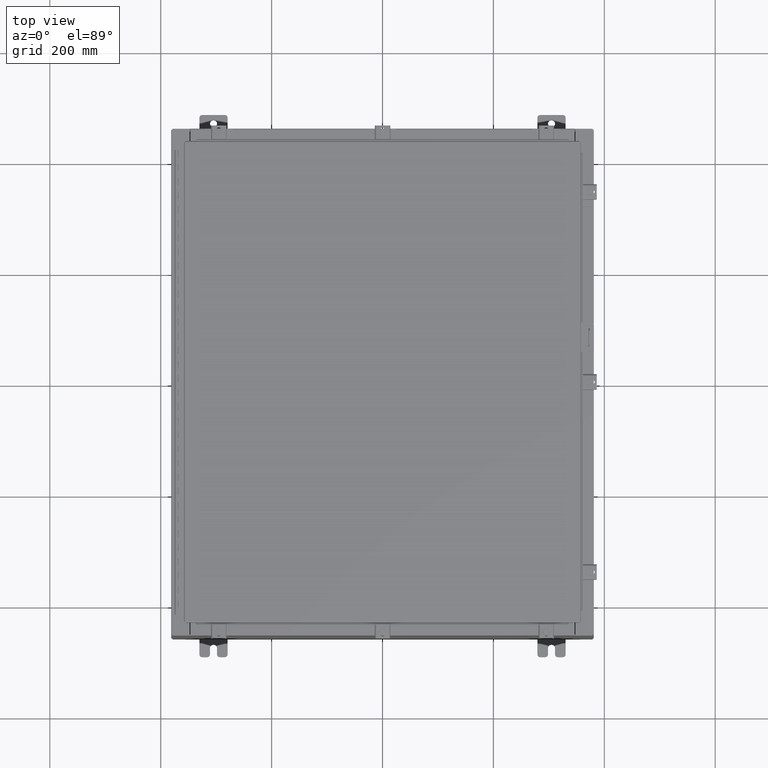
[diagram: clean part render]
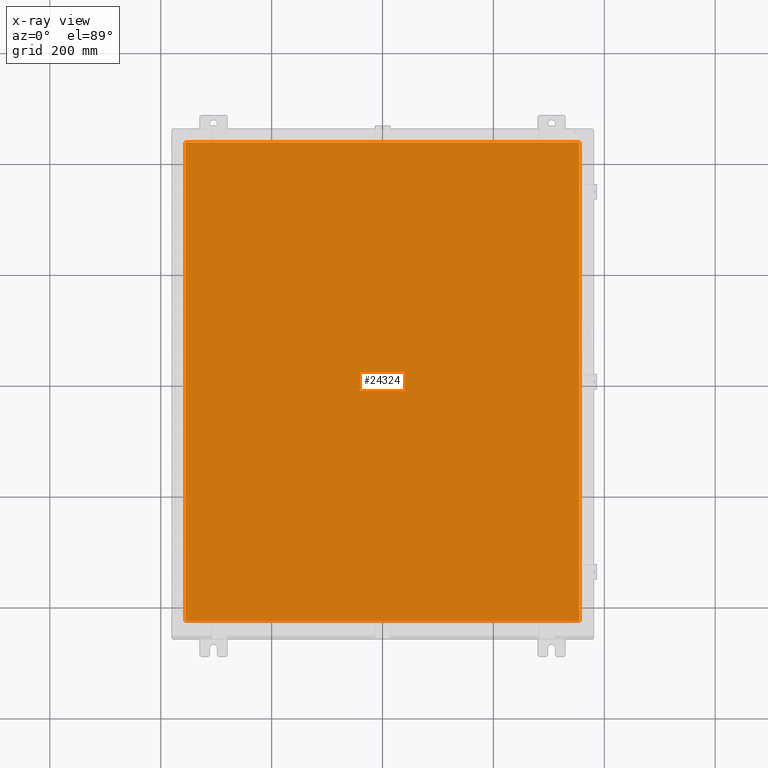
[diagram: x-ray — body ghosted, one internal face saturated and labeled with its STEP entity id]
A machine part, top view, then the same camera in x-ray: the body is ghosted and one INTERNAL B-rep face — a face not visible from any outside direction — is saturated and labeled: STEP entity #24324.
In plain terms, the highlighted planar face has unit normal (0, 0, -1).
Its self-contained STEP definition (entity closure, byte-faithful):
#29 = DIRECTION ( 'NONE',  ( -1.000000000000000000, -0.0000000000000000000, -0.0000000000000000000 ) ) ;
#142 = DIRECTION ( 'NONE',  ( -1.000000000000000000, 0.0000000000000000000, -0.0000000000000000000 ) ) ;
#771 = EDGE_CURVE ( 'NONE', #7264, #1986, #32343, .T. ) ;
#1769 = CARTESIAN_POINT ( 'NONE',  ( -13.99030000000000700, 17.00630000000000300, -0.07470000000000000300 ) ) ;
#1986 = VERTEX_POINT ( 'NONE', #1769 ) ;
#4353 = VECTOR ( 'NONE', #37739, 39.37007874015748100 ) ;
#5271 = DIRECTION ( 'NONE',  ( 1.000000000000000000, -0.0000000000000000000, -0.0000000000000000000 ) ) ;
#5656 = PLANE ( 'NONE',  #19933 ) ;
#6563 = LINE ( 'NONE', #34400, #4353 ) ;
#7264 = VERTEX_POINT ( 'NONE', #16754 ) ;
#8417 = EDGE_CURVE ( 'NONE', #21798, #7264, #41114, .T. ) ;
#8924 = ORIENTED_EDGE ( 'NONE', *, *, #36161, .F. ) ;
#9927 = EDGE_LOOP ( 'NONE', ( #15085, #33558, #8924, #13648 ) ) ;
#12647 = DIRECTION ( 'NONE',  ( 0.0000000000000000000, 1.000000000000000000, 0.0000000000000000000 ) ) ;
#12850 = CARTESIAN_POINT ( 'NONE',  ( 13.99029999999999200, -17.00630000000000000, -0.07470000000000019700 ) ) ;
#13648 = ORIENTED_EDGE ( 'NONE', *, *, #771, .F. ) ;
#15085 = ORIENTED_EDGE ( 'NONE', *, *, #8417, .F. ) ;
#16754 = CARTESIAN_POINT ( 'NONE',  ( 13.99029999999999200, 17.00630000000000300, -0.07470000000000000300 ) ) ;
#19281 = CARTESIAN_POINT ( 'NONE',  ( 13.99029999999999200, -17.00630000000000000, -0.07470000000000000300 ) ) ;
#19933 = AXIS2_PLACEMENT_3D ( 'NONE', #25994, #39043, #142 ) ;
#20115 = CARTESIAN_POINT ( 'NONE',  ( 13.99029999999999200, 17.00630000000000300, -0.07470000000000129300 ) ) ;
#21798 = VERTEX_POINT ( 'NONE', #19281 ) ;
#23969 = EDGE_CURVE ( 'NONE', #42237, #21798, #26385, .T. ) ;
#24324 = ADVANCED_FACE ( 'NONE', ( #34408 ), #5656, .T. ) ;
#25994 = CARTESIAN_POINT ( 'NONE',  ( 0.0000000000000000000, 0.0000000000000000000, -0.07470000000000000300 ) ) ;
#26385 = LINE ( 'NONE', #34169, #27970 ) ;
#27970 = VECTOR ( 'NONE', #5271, 39.37007874015748100 ) ;
#31183 = VECTOR ( 'NONE', #29, 39.37007874015748100 ) ;
#31407 = CARTESIAN_POINT ( 'NONE',  ( -13.99030000000000700, -17.00630000000000000, -0.07470000000000000300 ) ) ;
#32343 = LINE ( 'NONE', #20115, #31183 ) ;
#33558 = ORIENTED_EDGE ( 'NONE', *, *, #23969, .F. ) ;
#34169 = CARTESIAN_POINT ( 'NONE',  ( -13.99030000000000700, -17.00630000000000000, -0.07470000000000019700 ) ) ;
#34400 = CARTESIAN_POINT ( 'NONE',  ( -13.99030000000000700, 17.00630000000000000, -0.07470000000000019700 ) ) ;
#34408 = FACE_OUTER_BOUND ( 'NONE', #9927, .T. ) ;
#36161 = EDGE_CURVE ( 'NONE', #1986, #42237, #6563, .T. ) ;
#37739 = DIRECTION ( 'NONE',  ( 0.0000000000000000000, -1.000000000000000000, 0.0000000000000000000 ) ) ;
#39043 = DIRECTION ( 'NONE',  ( 0.0000000000000000000, 0.0000000000000000000, -1.000000000000000000 ) ) ;
#41114 = LINE ( 'NONE', #12850, #43293 ) ;
#42237 = VERTEX_POINT ( 'NONE', #31407 ) ;
#43293 = VECTOR ( 'NONE', #12647, 39.37007874015748100 ) ;